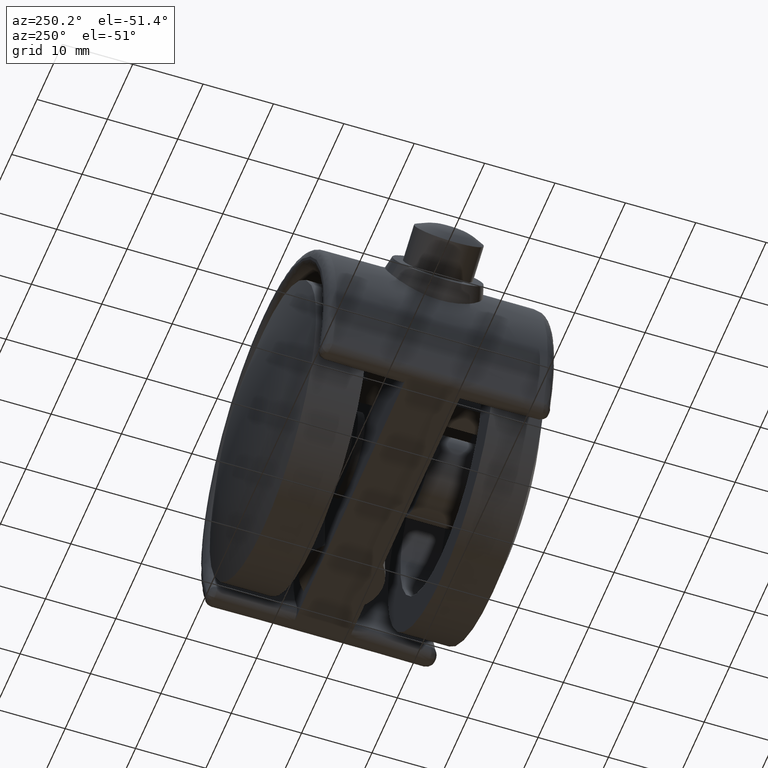
[diagram: clean part render]
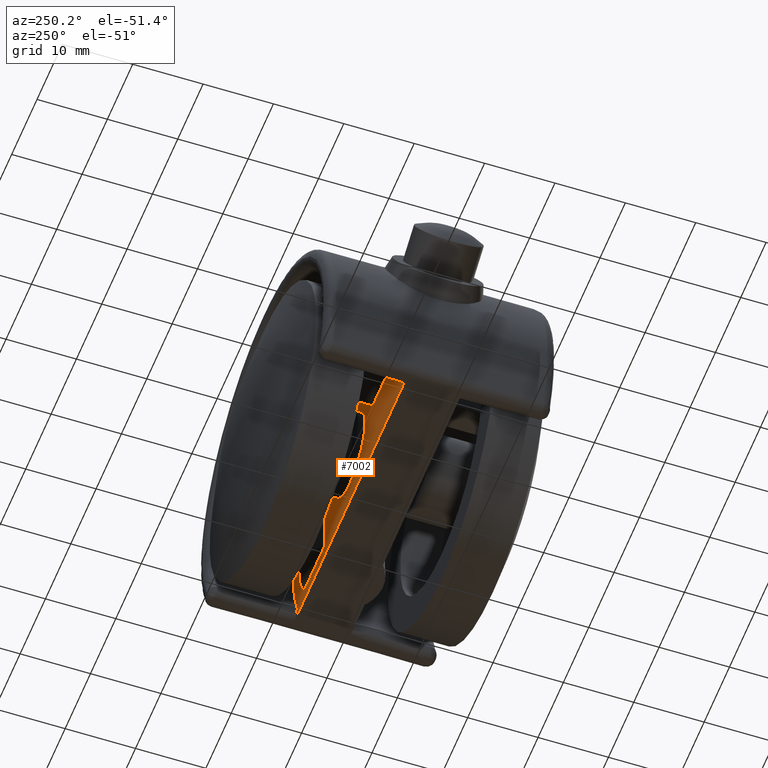
[diagram: same view with one face highlighted and labeled with its STEP entity id]
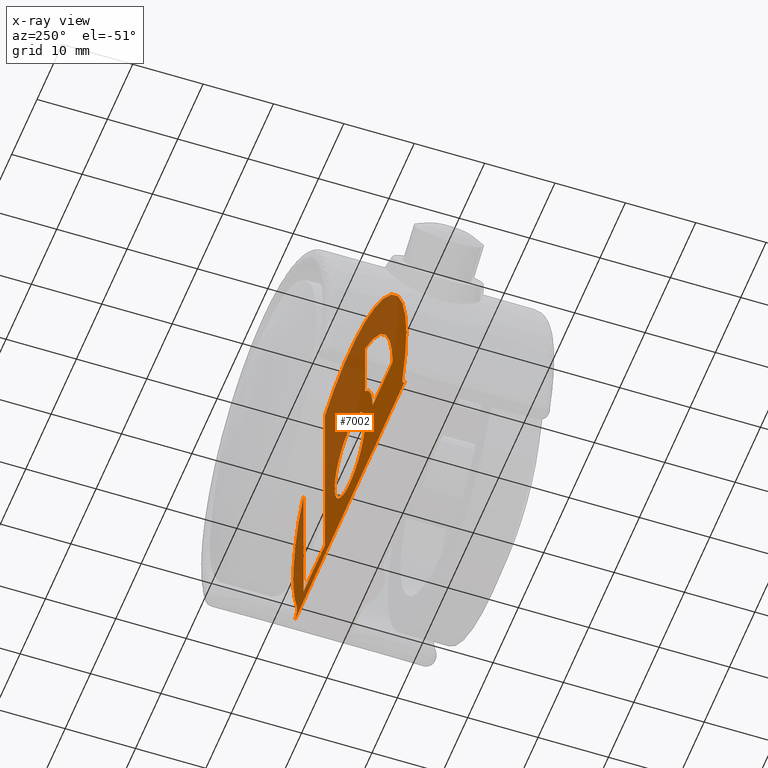
[diagram: x-ray of the same camera — body ghosted, the highlighted face saturated]
A machine part, auxiliary view. The second image highlights one B-rep face of the part: STEP entity #7002.
The next image is the same camera in x-ray: the body ghosted, the highlighted face saturated — about 55% of this face is hidden behind the body in this view.
In plain terms, the highlighted face is a freeform B-spline surface patch.
Its self-contained STEP definition (entity closure, byte-faithful):
#2806=CARTESIAN_POINT('',(-5.958057158173149,3.950000000000000,-0.708205408014997));
#2807=VERTEX_POINT('',#2806);
#2813=CARTESIAN_POINT('',(0.0,3.950000000000000,6.0));
#2814=VERTEX_POINT('',#2813);
#2815=CARTESIAN_POINT('',(-5.958057158173149,3.950000000000001,-0.708205408014997));
#2816=CARTESIAN_POINT('',(-6.0,3.950000000000001,-0.355344717986694));
#2817=CARTESIAN_POINT('',(-6.0,3.950000000000000,0.0));
#2818=CARTESIAN_POINT('',(-6.0,3.950000000000000,6.0));
#2819=CARTESIAN_POINT('',(0.0,3.950000000000000,6.0));
#2827=(BOUNDED_CURVE()B_SPLINE_CURVE(2,(#2815,#2816,#2817,#2818,#2819),.UNSPECIFIED.,.F.,.U.)B_SPLINE_CURVE_WITH_KNOTS((3,2,3),(0.229562473511421,0.250000000000000,0.500000000000000),.UNSPECIFIED.)CURVE()GEOMETRIC_REPRESENTATION_ITEM()RATIONAL_B_SPLINE_CURVE((0.956026754179608,0.976055948328699,1.0,0.707106781186548,1.0))REPRESENTATION_ITEM(''));
#2828=EDGE_CURVE('',#2807,#2814,#2827,.T.);
#2830=CARTESIAN_POINT('',(5.988809225545692,3.950000000000000,0.366284124646463));
#2831=VERTEX_POINT('',#2830);
#2832=CARTESIAN_POINT('',(0.0,3.950000000000000,6.0));
#2833=CARTESIAN_POINT('',(5.644243117297799,3.950000000000001,6.000000000000002));
#2834=CARTESIAN_POINT('',(5.988809225545692,3.950000000000000,0.366284124646463));
#2842=(BOUNDED_CURVE()B_SPLINE_CURVE(2,(#2832,#2833,#2834),.UNSPECIFIED.,.F.,.U.)B_SPLINE_CURVE_WITH_KNOTS((3,3),(0.500000000000000,0.739333167165867),.UNSPECIFIED.)CURVE()GEOMETRIC_REPRESENTATION_ITEM()RATIONAL_B_SPLINE_CURVE((1.0,0.719603753199885,0.976072480864519))REPRESENTATION_ITEM(''));
#2843=EDGE_CURVE('',#2814,#2831,#2842,.T.);
#2917=CARTESIAN_POINT('',(0.0,3.950000000000000,-6.0));
#2918=VERTEX_POINT('',#2917);
#2919=CARTESIAN_POINT('',(5.988809225545692,3.950000000000000,0.366284124646463));
#2920=CARTESIAN_POINT('',(6.0,3.950000000000001,0.183313013539051));
#2921=CARTESIAN_POINT('',(6.0,3.950000000000000,0.0));
#2922=CARTESIAN_POINT('',(6.0,3.950000000000000,-6.0));
#2923=CARTESIAN_POINT('',(0.0,3.950000000000000,-6.0));
#2931=(BOUNDED_CURVE()B_SPLINE_CURVE(2,(#2919,#2920,#2921,#2922,#2923),.UNSPECIFIED.,.F.,.U.)B_SPLINE_CURVE_WITH_KNOTS((3,2,3),(0.739333167165867,0.750000000000000,1.0),.UNSPECIFIED.)CURVE()GEOMETRIC_REPRESENTATION_ITEM()RATIONAL_B_SPLINE_CURVE((0.976072480864519,0.987503027986663,1.0,0.707106781186548,1.0))REPRESENTATION_ITEM(''));
#2932=EDGE_CURVE('',#2831,#2918,#2931,.T.);
#2934=CARTESIAN_POINT('',(0.0,3.950000000000000,-6.0));
#2935=CARTESIAN_POINT('',(-5.329047155574097,3.950000000000000,-6.000000000000001));
#2936=CARTESIAN_POINT('',(-5.958057158173149,3.950000000000000,-0.708205408014997));
#2944=(BOUNDED_CURVE()B_SPLINE_CURVE(2,(#2934,#2935,#2936),.UNSPECIFIED.,.F.,.U.)B_SPLINE_CURVE_WITH_KNOTS((3,3),(0.0,0.229562473511421),.UNSPECIFIED.)CURVE()GEOMETRIC_REPRESENTATION_ITEM()RATIONAL_B_SPLINE_CURVE((1.0,0.731050832857848,0.956026754179608))REPRESENTATION_ITEM(''));
#2945=EDGE_CURVE('',#2918,#2807,#2944,.T.);
#3595=CARTESIAN_POINT('',(-6.0,3.950000000000000,6.708206615780580));
#3596=VERTEX_POINT('',#3595);
#3602=CARTESIAN_POINT('',(-9.000002000000000,3.950000000000000,0.0));
#3603=VERTEX_POINT('',#3602);
#3604=CARTESIAN_POINT('',(-6.0,3.950000000000000,6.708206615780580));
#3605=CARTESIAN_POINT('',(-9.000001999999997,3.950000000000001,4.024924327239344));
#3606=CARTESIAN_POINT('',(-9.000001999999997,3.950000000000000,0.0));
#3614=(BOUNDED_CURVE()B_SPLINE_CURVE(2,(#3604,#3605,#3606),.UNSPECIFIED.,.F.,.U.)CURVE()GEOMETRIC_REPRESENTATION_ITEM()QUASI_UNIFORM_CURVE()RATIONAL_B_SPLINE_CURVE((1.0,0.912870888603246,1.0))REPRESENTATION_ITEM(''));
#3615=EDGE_CURVE('',#3596,#3603,#3614,.T.);
#4035=CARTESIAN_POINT('',(-6.0,3.950000000000000,15.750368339565901));
#4036=VERTEX_POINT('',#4035);
#4037=CARTESIAN_POINT('',(-6.0,3.950000000000000,6.708206615780580));
#4038=CARTESIAN_POINT('',(-6.0,3.950000000000000,15.750368339565901));
#4039=QUASI_UNIFORM_CURVE('',1,(#4037,#4038),.UNSPECIFIED.,.F.,.U.);
#4040=EDGE_CURVE('',#3596,#4036,#4039,.T.);
#4088=CARTESIAN_POINT('',(-16.854497999999900,3.950000000000000,0.0));
#4089=VERTEX_POINT('',#4088);
#4095=CARTESIAN_POINT('',(-6.000000000000007,3.950000000000000,15.750368339565920));
#4096=CARTESIAN_POINT('',(-16.854497999999904,3.949999999999999,11.615418185010080));
#4097=CARTESIAN_POINT('',(-16.854497999999900,3.950000000000000,0.0));
#4105=(BOUNDED_CURVE()B_SPLINE_CURVE(2,(#4095,#4096,#4097),.UNSPECIFIED.,.F.,.U.)CURVE()GEOMETRIC_REPRESENTATION_ITEM()QUASI_UNIFORM_CURVE()RATIONAL_B_SPLINE_CURVE((1.0,0.823403928006376,1.0))REPRESENTATION_ITEM(''));
#4106=EDGE_CURVE('',#4036,#4089,#4105,.T.);
#4122=CARTESIAN_POINT('',(-16.854497999999900,3.950000000000000,0.0));
#4123=CARTESIAN_POINT('',(-9.000002000000000,3.950000000000000,0.0));
#4124=QUASI_UNIFORM_CURVE('',1,(#4122,#4123),.UNSPECIFIED.,.F.,.U.);
#4125=EDGE_CURVE('',#4089,#3603,#4124,.T.);
#4277=CARTESIAN_POINT('',(9.781586002324699,3.950000000000000,-7.700000000000000));
#4278=VERTEX_POINT('',#4277);
#4279=CARTESIAN_POINT('',(18.218409997675501,3.950000000000000,-7.700000000000000));
#4280=VERTEX_POINT('',#4279);
#4296=CARTESIAN_POINT('',(9.781586002324699,3.950000000000000,20.056242804404700));
#4297=VERTEX_POINT('',#4296);
#4298=CARTESIAN_POINT('',(9.781586002324699,3.950000000000000,-7.700000000000000));
#4299=CARTESIAN_POINT('',(9.781586002324699,3.950000000000000,20.056242804404700));
#4300=QUASI_UNIFORM_CURVE('',1,(#4298,#4299),.UNSPECIFIED.,.F.,.U.);
#4301=EDGE_CURVE('',#4278,#4297,#4300,.T.);
#4303=CARTESIAN_POINT('',(18.218409997675501,3.950000000000000,12.884946150710499));
#4304=VERTEX_POINT('',#4303);
#4342=CARTESIAN_POINT('',(18.218409997675501,3.950000000000000,12.884946150710499));
#4343=CARTESIAN_POINT('',(18.218409997675501,3.950000000000000,-7.700000000000000));
#4344=QUASI_UNIFORM_CURVE('',1,(#4342,#4343),.UNSPECIFIED.,.F.,.U.);
#4345=EDGE_CURVE('',#4304,#4280,#4344,.T.);
#4356=CARTESIAN_POINT('',(18.218409997675501,3.950000000000000,-7.700000000000000));
#4357=CARTESIAN_POINT('',(9.781586002324699,3.950000000000000,-7.700000000000000));
#4358=QUASI_UNIFORM_CURVE('',1,(#4356,#4357),.UNSPECIFIED.,.F.,.U.);
#4359=EDGE_CURVE('',#4280,#4278,#4358,.T.);
#5984=CARTESIAN_POINT('',(20.854905771677899,3.950000000000000,-7.937581836084940));
#5985=VERTEX_POINT('',#5984);
#5986=CARTESIAN_POINT('',(22.069919937677849,3.950000000000000,-9.700000000000001));
#5987=VERTEX_POINT('',#5986);
#5988=CARTESIAN_POINT('',(20.854905771677899,3.950000000000000,-7.937581836084940));
#5989=CARTESIAN_POINT('',(20.817295773708409,3.950000000000002,-8.036396938709633));
#5990=CARTESIAN_POINT('',(20.792334314585879,3.950000000000001,-8.137710196464564));
#5991=CARTESIAN_POINT('',(20.773213468999849,3.950000000000001,-8.293298647881816));
#5992=CARTESIAN_POINT('',(20.769931934246120,3.950000000000000,-8.346085964838823));
#5993=CARTESIAN_POINT('',(20.769829931945949,3.950000000000000,-8.451395772120284));
#5994=CARTESIAN_POINT('',(20.776102713942969,3.950000000000001,-8.555791795353558));
#5995=CARTESIAN_POINT('',(20.794748076145989,3.950000000000000,-8.658414289334701));
#5996=CARTESIAN_POINT('',(20.819664711924549,3.950000000000000,-8.760137836859313));
#5997=CARTESIAN_POINT('',(20.835401237760401,3.950000000000000,-8.810865724995377));
#5998=CARTESIAN_POINT('',(20.891106823224661,3.950000000000000,-8.958122784784623));
#5999=CARTESIAN_POINT('',(20.939435639778299,3.950000000000000,-9.050471301139710));
#6000=CARTESIAN_POINT('',(21.028746354318610,3.950000000000001,-9.180244259857147));
#6001=CARTESIAN_POINT('',(21.061449574395890,3.950000000000000,-9.222063876477160));
#6002=CARTESIAN_POINT('',(21.130803722905210,3.950000000000000,-9.300474317628172));
#6003=CARTESIAN_POINT('',(21.204487167408860,3.950000000000000,-9.374271871304277));
#6004=CARTESIAN_POINT('',(21.286726920013081,3.950000000000000,-9.438952634047093));
#6005=CARTESIAN_POINT('',(21.373382974066988,3.950000000000000,-9.498927804548249));
#6006=CARTESIAN_POINT('',(21.418568247812310,3.950000000000000,-9.526274933120623));
#6007=CARTESIAN_POINT('',(21.557263548188310,3.950000000000000,-9.599213454397551));
#6008=CARTESIAN_POINT('',(21.654901682674151,3.950000000000000,-9.636501173925437));
#6009=CARTESIAN_POINT('',(21.860040935317521,3.949999999999999,-9.687291064356103));
#6010=CARTESIAN_POINT('',(21.964189527046258,3.950000000000000,-9.700000000000001));
#6011=CARTESIAN_POINT('',(22.069919937677849,3.950000000000000,-9.700000000000001));
#6012=B_SPLINE_CURVE_WITH_KNOTS('',3,(#5988,#5989,#5990,#5991,#5992,#5993,#5994,#5995,#5996,#5997,#5998,#5999,#6000,#6001,#6002,#6003,#6004,#6005,#6006,#6007,#6008,#6009,#6010,#6011),.UNSPECIFIED.,.F.,.U.,(4,2,2,1,2,2,2,2,1,2,2,2,4),(0.0,0.125000000000000,0.187500000000000,0.250000000000000,0.312500000000001,0.375000000000001,0.500000000000001,0.562500000000001,0.625000000000001,0.687500000000001,0.750000000000000,0.875000000000000,1.0),.UNSPECIFIED.);
#6013=EDGE_CURVE('',#5985,#5987,#6012,.T.);
#6475=CARTESIAN_POINT('',(-22.069919937677799,3.950000000000000,-9.700000000000001));
#6476=VERTEX_POINT('',#6475);
#6496=CARTESIAN_POINT('',(-20.854905771677899,3.950000000000000,-7.937581836084900));
#6497=VERTEX_POINT('',#6496);
#6505=CARTESIAN_POINT('',(-22.069919937677799,3.950000000000000,-9.700000000000001));
#6506=CARTESIAN_POINT('',(-21.964189485856089,3.950000000000001,-9.699999999999996));
#6507=CARTESIAN_POINT('',(-21.860623377240369,3.950000000000001,-9.687291132029888));
#6508=CARTESIAN_POINT('',(-21.708409226373028,3.950000000000002,-9.649819264281170));
#6509=CARTESIAN_POINT('',(-21.657907187093269,3.950000000000000,-9.634110315934976));
#6510=CARTESIAN_POINT('',(-21.559447446508120,3.950000000000000,-9.596748159057045));
#6511=CARTESIAN_POINT('',(-21.464109125605159,3.950000000000000,-9.553753594498206));
#6512=CARTESIAN_POINT('',(-21.374829044694831,3.950000000000000,-9.499827312662715));
#6513=CARTESIAN_POINT('',(-21.288619686295188,3.950000000000000,-9.440360103039216));
#6514=CARTESIAN_POINT('',(-21.246805912528121,3.950000000000000,-9.407610423918428));
#6515=CARTESIAN_POINT('',(-21.128989342947129,3.950000000000001,-9.303172273270672));
#6516=CARTESIAN_POINT('',(-21.059867963442510,3.950000000000000,-9.225158624466326));
#6517=CARTESIAN_POINT('',(-20.970345403814640,3.950000000000000,-9.095533565788680));
#6518=CARTESIAN_POINT('',(-20.942891122368639,3.950000000000000,-9.050094636246673));
#6519=CARTESIAN_POINT('',(-20.894273904886361,3.950000000000000,-8.957386947213418));
#6520=CARTESIAN_POINT('',(-20.851508178930569,3.950000000000000,-8.862274063029274));
#6521=CARTESIAN_POINT('',(-20.820307057435691,3.950000000000000,-8.762407667634221));
#6522=CARTESIAN_POINT('',(-20.795074894163019,3.950000000000000,-8.660087793616320));
#6523=CARTESIAN_POINT('',(-20.785586917625679,3.950000000000001,-8.608129145465762));
#6524=CARTESIAN_POINT('',(-20.766748790347460,3.950000000000000,-8.452559804023455));
#6525=CARTESIAN_POINT('',(-20.766627949986020,3.950000000000001,-8.348046547536612));
#6526=CARTESIAN_POINT('',(-20.792127006648290,3.950000000000000,-8.138255112925945));
#6527=CARTESIAN_POINT('',(-20.817295756358341,3.950000000000000,-8.036396984294685));
#6528=CARTESIAN_POINT('',(-20.854905771677849,3.950000000000000,-7.937581836084900));
#6529=B_SPLINE_CURVE_WITH_KNOTS('',3,(#6505,#6506,#6507,#6508,#6509,#6510,#6511,#6512,#6513,#6514,#6515,#6516,#6517,#6518,#6519,#6520,#6521,#6522,#6523,#6524,#6525,#6526,#6527,#6528),.UNSPECIFIED.,.F.,.U.,(4,2,2,1,2,2,2,2,1,2,2,2,4),(0.0,0.125000000000000,0.187500000000000,0.249999999999999,0.312499999999999,0.374999999999999,0.499999999999998,0.562499999999998,0.624999999999998,0.687499999999998,0.749999999999999,0.874999999999999,1.0),.UNSPECIFIED.);
#6530=EDGE_CURVE('',#6476,#6497,#6529,.T.);
#6761=CARTESIAN_POINT('',(-22.069919937677799,3.950000000000000,-9.700000000000001));
#6762=CARTESIAN_POINT('',(22.069919937677849,3.950000000000000,-9.700000000000001));
#6763=QUASI_UNIFORM_CURVE('',1,(#6761,#6762),.UNSPECIFIED.,.F.,.U.);
#6764=EDGE_CURVE('',#6476,#5987,#6763,.T.);
#6923=CARTESIAN_POINT('',(-20.854905771677888,3.950000000000000,-7.937581836084907));
#6924=CARTESIAN_POINT('',(-26.251112233321770,3.950000000000000,6.240209285450152));
#6925=CARTESIAN_POINT('',(-15.052181143582070,3.950000000000000,16.473133975382499));
#6926=CARTESIAN_POINT('',(-3.853250053842363,3.950000000000000,26.706058665314846));
#6927=CARTESIAN_POINT('',(9.781586002324689,3.950000000000000,20.056242804404679));
#6935=(BOUNDED_CURVE()B_SPLINE_CURVE(2,(#6923,#6924,#6925,#6926,#6927),.UNSPECIFIED.,.F.,.U.)B_SPLINE_CURVE_WITH_KNOTS((3,2,3),(0.0,0.500000000000000,1.0),.UNSPECIFIED.)CURVE()GEOMETRIC_REPRESENTATION_ITEM()RATIONAL_B_SPLINE_CURVE((1.0,0.826991858864359,1.0,0.826991858864359,1.0))REPRESENTATION_ITEM(''));
#6936=EDGE_CURVE('',#6497,#4297,#6935,.T.);
#6941=CARTESIAN_POINT('',(18.218409997675501,3.950000000000000,12.884946150710499));
#6942=CARTESIAN_POINT('',(25.084915861044113,3.950000000000000,3.176188534878655));
#6943=CARTESIAN_POINT('',(20.854905771677881,3.950000000000000,-7.937581836084933));
#6951=(BOUNDED_CURVE()B_SPLINE_CURVE(2,(#6941,#6942,#6943),.UNSPECIFIED.,.F.,.U.)CURVE()GEOMETRIC_REPRESENTATION_ITEM()QUASI_UNIFORM_CURVE()RATIONAL_B_SPLINE_CURVE((1.0,0.882508325932485,1.0))REPRESENTATION_ITEM(''));
#6952=EDGE_CURVE('',#4304,#5985,#6951,.T.);
#6975=CARTESIAN_POINT('',(-24.529764029299589,3.950000000000000,23.906834199506680));
#6976=CARTESIAN_POINT('',(-24.529764029299589,3.950000000000000,-11.298802045462290));
#6977=CARTESIAN_POINT('',(24.542697065230541,3.950000000000000,23.906834199506680));
#6978=CARTESIAN_POINT('',(24.542697065230541,3.950000000000000,-11.298802045462290));
#6979=B_SPLINE_SURFACE_WITH_KNOTS('',1,1,((#6975,#6977),(#6976,#6978)),.UNSPECIFIED.,.F.,.F.,.U.,(2,2),(2,2),(0.0,35.205636244968971),(0.0,49.072461094530127),.UNSPECIFIED.);
#6980=ORIENTED_EDGE('',*,*,#4301,.F.);
#6981=ORIENTED_EDGE('',*,*,#4359,.F.);
#6982=ORIENTED_EDGE('',*,*,#4345,.F.);
#6983=ORIENTED_EDGE('',*,*,#6952,.T.);
#6984=ORIENTED_EDGE('',*,*,#6013,.T.);
#6985=ORIENTED_EDGE('',*,*,#6764,.F.);
#6986=ORIENTED_EDGE('',*,*,#6530,.T.);
#6987=ORIENTED_EDGE('',*,*,#6936,.T.);
#6988=EDGE_LOOP('',(#6980,#6981,#6982,#6983,#6984,#6985,#6986,#6987));
#6989=FACE_OUTER_BOUND('',#6988,.T.);
#6990=ORIENTED_EDGE('',*,*,#3615,.F.);
#6991=ORIENTED_EDGE('',*,*,#4040,.T.);
#6992=ORIENTED_EDGE('',*,*,#4106,.T.);
#6993=ORIENTED_EDGE('',*,*,#4125,.T.);
#6994=EDGE_LOOP('',(#6990,#6991,#6992,#6993));
#6995=FACE_BOUND('',#6994,.T.);
#6996=ORIENTED_EDGE('',*,*,#2843,.F.);
#6997=ORIENTED_EDGE('',*,*,#2828,.F.);
#6998=ORIENTED_EDGE('',*,*,#2945,.F.);
#6999=ORIENTED_EDGE('',*,*,#2932,.F.);
#7000=EDGE_LOOP('',(#6996,#6997,#6998,#6999));
#7001=FACE_BOUND('',#7000,.T.);
#7002=ADVANCED_FACE('',(#6989,#6995,#7001),#6979,.F.);